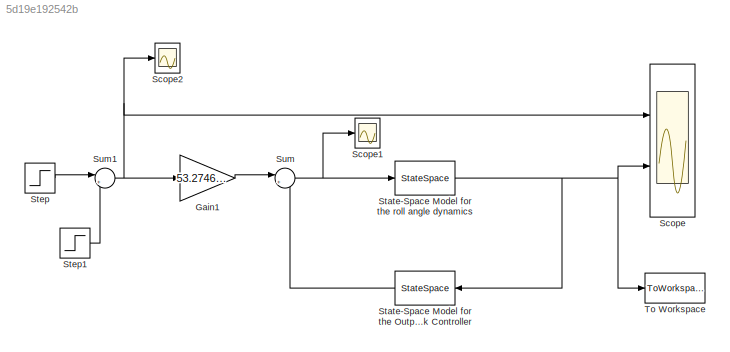
MODEL slx_5d19e192542b
KIND model
CONFIG AbsTol = auto
CONFIG EnableMultiTasking = off
CONFIG FixedStep = auto
CONFIG MaxStep = auto
CONFIG MinStep = auto
CONFIG RelTol = 1e-3
CONFIG SampleTimeConstraint = Unconstrained
CONFIG Solver = VariableStepAuto
CONFIG SolverName = VariableStepAuto
CONFIG StartTime = 0.0
CONFIG StopTime = 5
BLOCK [Gain] Gain1
  Gain = 53.274628508530654
  OutDataTypeStr = Inherit: Inherit via internal rule
  ParamDataTypeStr = Inherit: Inherit via internal rule
  SaturateOnIntegerOverflow = off
BLOCK [Scope] Scope
  Floating = off
  NumInputPorts = 2
  Ports = [2]
  ScopeSpecificationString = Simulink.scopes.TimeScopeBlockCfg('CurrentConfiguration', extmgr.ConfigurationSet(extmgr.Configuration('Core','General UI',true),extmgr.Configuration('Core','Source UI',true),extmgr.Configuration('Sources','WiredSimulink',true),extmgr.Configuration('Visuals','Time Domain',true,'SerializedDisplays',{struct('MinYLimReal','-0.14038','MaxYLimReal','1.26339','YLabelReal','','MinYLimMag','0.00000','MaxY...<+1462ch>
BLOCK [Scope] Scope1
  Floating = off
  NumInputPorts = 1
  Ports = [1]
  ScopeSpecificationString = Simulink.scopes.TimeScopeBlockCfg('CurrentConfiguration', extmgr.ConfigurationSet(extmgr.Configuration('Core','General UI',true),extmgr.Configuration('Core','Source UI',true),extmgr.Configuration('Sources','WiredSimulink',true,'DataLoggingVariableName','ScopeData1'),extmgr.Configuration('Visuals','Time Domain',true,'SerializedDisplays',{struct('MinYLimReal','-5.82856','MaxYLimReal','5.82856','YLab...<+1487ch>
BLOCK [Scope] Scope2
  Floating = off
  NumInputPorts = 1
  Ports = [1]
  ScopeSpecificationString = Simulink.scopes.TimeScopeBlockCfg('CurrentConfiguration', extmgr.ConfigurationSet(extmgr.Configuration('Core','General UI',true),extmgr.Configuration('Core','Source UI',true),extmgr.Configuration('Sources','WiredSimulink',true,'DataLoggingVariableName','ScopeData2'),extmgr.Configuration('Visuals','Time Domain',true,'SerializedDisplays',{struct('MinYLimReal','-5.82856','MaxYLimReal','5.82856','YLab...<+1488ch>
BLOCK [StateSpace] State-Space Model for the Output-Feedback Controller 
  A = [-84.000000000001500,1;-1.870000000000048e+03,-20.999999999999960]
  B = [84.000000000001500;1.760000000000048e+03]
  C = [1.099999999999996e+02,20.999999999999960]
  D = 0
  InitialCondition = [0 ; 0]
  Ports = [1, 1]
BLOCK [StateSpace] State-Space Model for the roll angle dynamics
  A = [0 1 ; 0 0]
  B = [0;1]
  C = [1 , 0 ]
  D = 0
  InitialCondition = [0 ; 0]
  Ports = [1, 1]
BLOCK [Step] Step
  After = deg2rad(30)
  SampleTime = 0
BLOCK [Step] Step1
  After = deg2rad(30)
  SampleTime = 0
  Time = 5
BLOCK [Sum] Sum
  IconShape = round
  InputSameDT = off
  Inputs = |+-
  OutDataTypeStr = Inherit: Inherit via internal rule
  Ports = [2, 1]
  SaturateOnIntegerOverflow = off
BLOCK [Sum] Sum1
  IconShape = round
  InputSameDT = off
  Inputs = |+-
  OutDataTypeStr = Inherit: Inherit via internal rule
  Ports = [2, 1]
  SaturateOnIntegerOverflow = off
BLOCK [ToWorkspace] To Workspace
  FixptAsFi = on
  MaxDataPoints = inf
  Ports = [1]
  SampleTime = 0.05
  Save2DSignal = 3-D array (concatenate along third dimension)
  SaveFormat = Timeseries
  VariableName = simout
LINE Gain1:1 -> Sum:1
LINE State-Space Model for the Output-Feedback Controller :1 -> Sum:2
NET State-Space Model for the roll angle dynamics:1 -> Scope:2, State-Space Model for the Output-Feedback Controller :1, To Workspace:1
LINE Step1:1 -> Sum1:2
LINE Step:1 -> Sum1:1
NET Sum1:1 -> Gain1:1, Scope2:1, Scope:1
NET Sum:1 -> Scope1:1, State-Space Model for the roll angle dynamics:1
note: NET lines group one-source signal fan-out (src -> all destinations, sorted); 1:1 wires keep LINE
